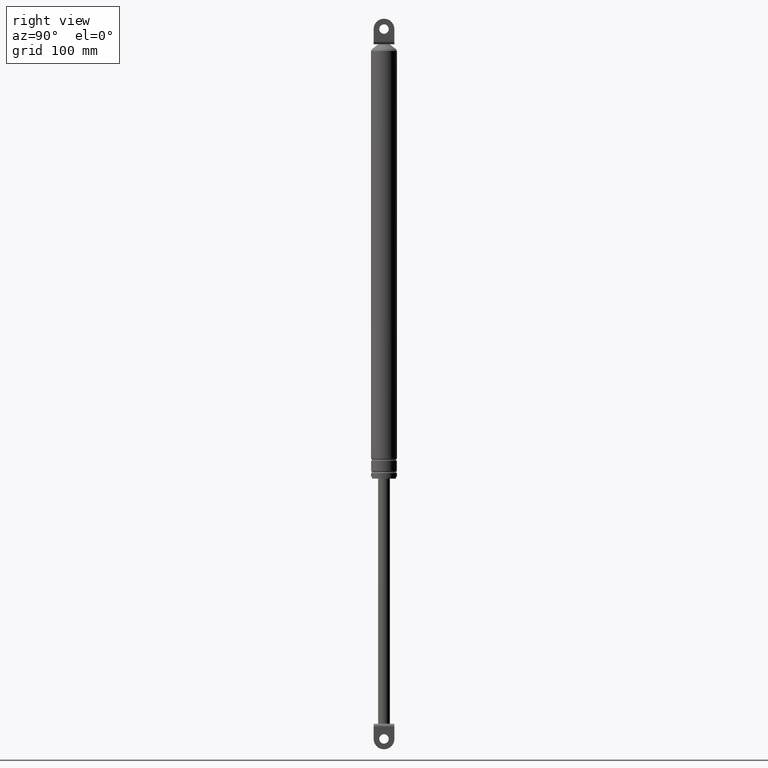
[diagram: clean part render]
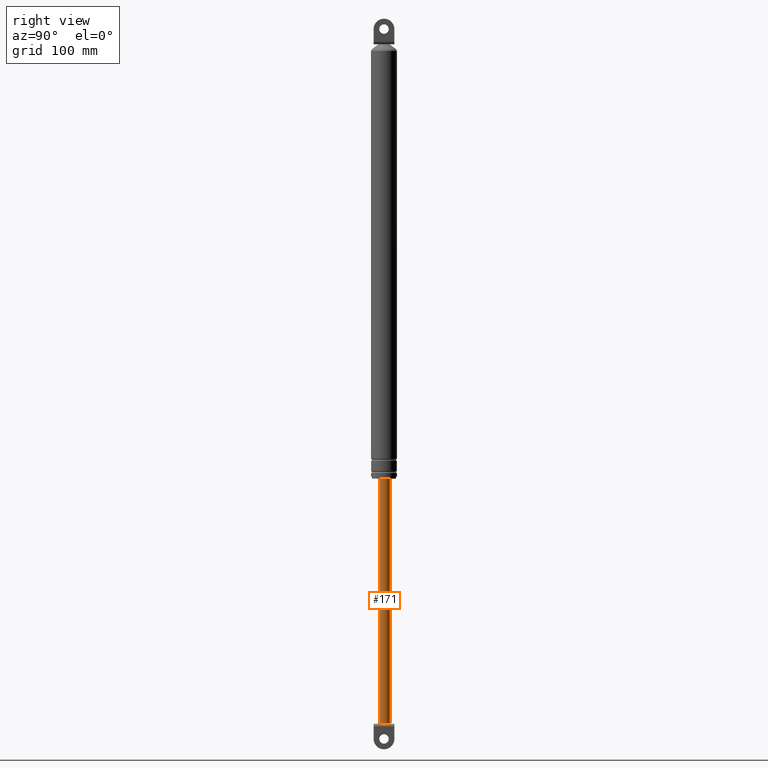
[diagram: same view with one face highlighted and labeled with its STEP entity id]
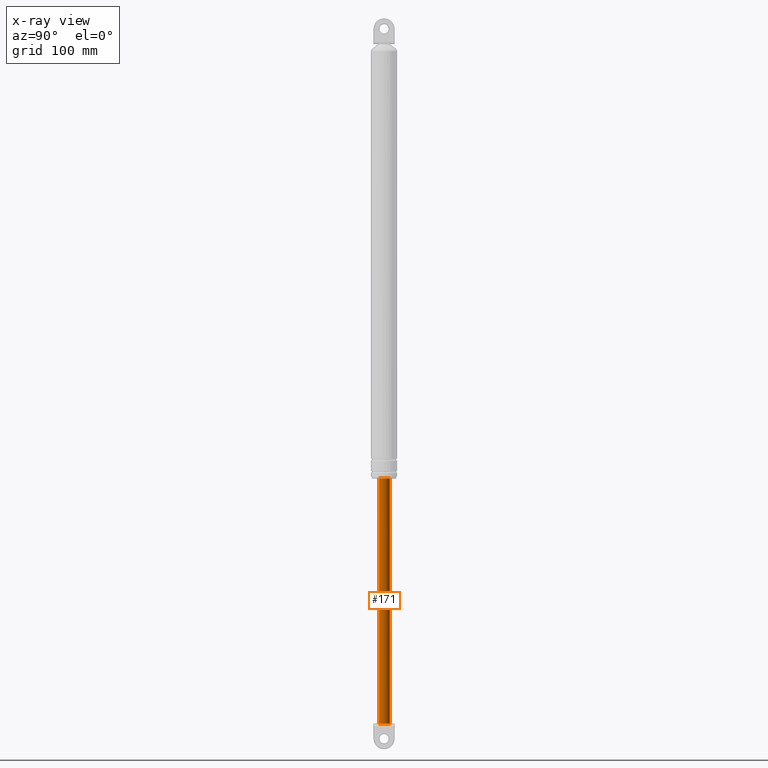
[diagram: x-ray of the same camera — body ghosted, the highlighted face saturated]
A machine part, right view. The second image highlights one B-rep face of the part: STEP entity #171.
The next image is the same camera in x-ray: the body ghosted, the highlighted face saturated — about 0% of this face is hidden behind the body in this view.
In plain terms, the highlighted cylindrical surface (edge-blend (fillet) strip) has radius 6.25 mm, axis along (0, 0, 1).
Its self-contained STEP definition (entity closure, byte-faithful):
#171=ADVANCED_FACE('',(#775),#774,.T.);
#774=CYLINDRICAL_SURFACE('',#2151,6.25000000000E+000);
#775=FACE_OUTER_BOUND('',#2152,.T.);
#2148=CARTESIAN_POINT('',(5.17052520630E-013,7.41881103725E-013,5.64750004000E+001));
#2149=DIRECTION('',(3.80518948291E-015,5.44705299484E-015,1.00000000000E+000));
#2150=DIRECTION('',(5.74319039491E-001,-8.18631566016E-001,2.27373675443E-015));
#2151=AXIS2_PLACEMENT_3D('',#2148,#2149,#2150);
#2152=EDGE_LOOP('',(#2529,#2530,#2531,#2532,#2533,#2534));
#2529=ORIENTED_EDGE('',*,*,#2718,.F.);
#2530=ORIENTED_EDGE('',*,*,#2740,.F.);
#2531=ORIENTED_EDGE('',*,*,#2722,.F.);
#2532=ORIENTED_EDGE('',*,*,#2716,.F.);
#2533=ORIENTED_EDGE('',*,*,#2721,.F.);
#2534=ORIENTED_EDGE('',*,*,#2741,.T.);
#2716=EDGE_CURVE('',#3819,#3806,#3845,.T.);
#2718=EDGE_CURVE('',#3852,#3859,#3860,.T.);
#2721=EDGE_CURVE('',#3872,#3819,#3879,.T.);
#2722=EDGE_CURVE('',#3806,#3885,#3886,.T.);
#2740=EDGE_CURVE('',#3885,#3852,#4006,.T.);
#2741=EDGE_CURVE('',#3872,#3859,#4012,.T.);
#3806=VERTEX_POINT('',#4707);
#3819=VERTEX_POINT('',#4715);
#3845=(BOUNDED_CURVE() B_SPLINE_CURVE(3,(#4741,#4742,#4743,#4744,#4745,#4746,#4747,#4748,#4749,#4750,#4751,#4752,#4753,#4754,#4755,#4756,#4757),.UNSPECIFIED.,.F.,.F.) B_SPLINE_CURVE_WITH_KNOTS((4,1,1,1,1,1,1,1,1,1,1,1,1,1,4),(0.00000000000E+000,1.01641516842E-001,1.77847721655E-001,2.54044348754E-001,2.92228724971E-001,3.49498602693E-001,4.10848167123E-001,4.92658784214E-001,5.77129426179E-001,6.40474828162E-001,6.99611975232E-001,7.39041330372E-001,8.17313273304E-001,8.95595721174E-001,1.00000000000E+000),.UNSPECIFIED.) CURVE() GEOMETRIC_REPRESENTATION_ITEM() RATIONAL_B_SPLINE_CURVE((1.00000000000E+000,1.00000000000E+000,1.00000000000E+000,1.00000000000E+000,1.00000000000E+000,1.00000000000E+000,1.00000000000E+000,1.00000000000E+000,1.00000000000E+000,1.00000000000E+000,1.00000000000E+000,1.00000000000E+000,1.00000000000E+000,1.00000000000E+000,1.00000000000E+000,1.00000000000E+000,1.00000000000E+000)) REPRESENTATION_ITEM('') );
#3852=VERTEX_POINT('',#4759);
#3859=VERTEX_POINT('',#4764);
#3860=CIRCLE('',#4768,6.25000000000E+000);
#3872=VERTEX_POINT('',#4773);
#3879=CIRCLE('',#4781,6.25000000000E+000);
#3885=VERTEX_POINT('',#4782);
#3886=CIRCLE('',#4786,6.25000000305E+000);
#4006=(BOUNDED_CURVE() B_SPLINE_CURVE(1,(#4886,#4887),.UNSPECIFIED.,.F.,.F.) B_SPLINE_CURVE_WITH_KNOTS((2,2),(3.58425167392E-002,9.64157716565E-001),.UNSPECIFIED.) CURVE() GEOMETRIC_REPRESENTATION_ITEM() RATIONAL_B_SPLINE_CURVE((1.00000000000E+000,1.00000000000E+000)) REPRESENTATION_ITEM('') );
#4012=(BOUNDED_CURVE() B_SPLINE_CURVE(1,(#4888,#4889),.UNSPECIFIED.,.F.,.F.) B_SPLINE_CURVE_WITH_KNOTS((2,2),(3.58425166952E-002,9.64157716507E-001),.UNSPECIFIED.) CURVE() GEOMETRIC_REPRESENTATION_ITEM() RATIONAL_B_SPLINE_CURVE((7.50000000000E-001,7.50000000000E-001)) REPRESENTATION_ITEM('') );
#4707=CARTESIAN_POINT('',(5.69999694525E+000,-2.56369554046E+000,-2.09000016000E+002));
#4715=CARTESIAN_POINT('',(5.69999705740E+000,2.56369541873E+000,-2.09000016000E+002));
#4741=CARTESIAN_POINT('',(5.69999705740E+000,2.56369541873E+000,-2.09000016000E+002));
#4742=CARTESIAN_POINT('',(5.77341445001E+000,2.40046650721E+000,-2.09000013720E+002));
#4743=CARTESIAN_POINT('',(5.88960533185E+000,2.10931027937E+000,-2.09000030250E+002));
#4744=CARTESIAN_POINT('',(6.02383267738E+000,1.68226258394E+000,-2.09000030657E+002));
#4745=CARTESIAN_POINT('',(6.10370319343E+000,1.35604793108E+000,-2.09000005889E+002));
#4746=CARTESIAN_POINT('',(6.16132003068E+000,1.05929759735E+000,-2.09000043077E+002));
#4747=CARTESIAN_POINT('',(6.20299004325E+000,7.86232315189E-001,-2.09000079730E+002));
#4748=CARTESIAN_POINT('',(6.23869609515E+000,4.34965106366E-001,-2.09000073328E+002));
#4749=CARTESIAN_POINT('',(6.25505614878E+000,3.41450152132E-002,-2.08999988265E+002));
#4750=CARTESIAN_POINT('',(6.24311865477E+000,-3.70376705801E-001,-2.09000059591E+002));
#4751=CARTESIAN_POINT('',(6.20963102534E+000,-7.33413097975E-001,-2.09000081063E+002));
#4752=CARTESIAN_POINT('',(6.16877179402E+000,-1.01570446172E+000,-2.09000049264E+002));
#4753=CARTESIAN_POINT('',(6.11136240023E+000,-1.32179777044E+000,-2.09000007357E+002));
#4754=CARTESIAN_POINT('',(6.03089619683E+000,-1.65766750171E+000,-2.09000027842E+002));
#4755=CARTESIAN_POINT('',(5.89441931723E+000,-2.09679538415E+000,-2.09000030510E+002));
#4756=CARTESIAN_POINT('',(5.77541031475E+000,-2.39602975653E+000,-2.09000013667E+002));
#4757=CARTESIAN_POINT('',(5.69999694525E+000,-2.56369554046E+000,-2.09000016000E+002));
#4759=CARTESIAN_POINT('',(3.58949399854E+000,-5.11644728639E+000,5.00000000000E+001));
#4764=CARTESIAN_POINT('',(-3.58946074567E+000,5.11647061511E+000,5.00000000000E+001));
#4765=CARTESIAN_POINT('',(1.33226762955E-015,8.88178419700E-016,5.00000000000E+001));
#4766=DIRECTION('',(-2.27373675443E-015,4.01943669423E-016,1.00000000000E+000));
#4767=DIRECTION('',(-1.00000000000E+000,-1.63424829225E-015,-2.27373675443E-015));
#4768=AXIS2_PLACEMENT_3D('',#4765,#4766,#4767);
#4773=CARTESIAN_POINT('',(-3.58942472581E+000,5.11649588466E+000,-2.09000016000E+002));
#4778=CARTESIAN_POINT('',(1.14885878588E-012,1.33359989718E-012,-2.09000016000E+002));
#4779=DIRECTION('',(4.86447595091E-014,1.74623383613E-014,-1.00000000000E+000));
#4780=DIRECTION('',(5.74319538181E-001,-8.18631216155E-001,1.36424205266E-014));
#4781=AXIS2_PLACEMENT_3D('',#4778,#4779,#4780);
#4782=CARTESIAN_POINT('',(3.58949399651E+000,-5.11644728718E+000,-2.09000016000E+002));
#4783=CARTESIAN_POINT('',(-2.01921102061E-009,2.93433277676E-009,-2.09000016000E+002));
#4784=DIRECTION('',(-2.31663044633E-014,1.50105157847E-014,-1.00000000000E+000));
#4785=DIRECTION('',(-9.11999519879E-001,4.10191267266E-001,2.72848410399E-014));
#4786=AXIS2_PLACEMENT_3D('',#4783,#4784,#4785);
#4886=CARTESIAN_POINT('',(3.58949399682E+000,-5.11644728760E+000,-2.09000015988E+002));
#4887=CARTESIAN_POINT('',(3.58949399682E+000,-5.11644728760E+000,5.00000000161E+001));
#4888=CARTESIAN_POINT('',(-3.58949399682E+000,5.11644728760E+000,-2.09000016000E+002));
#4889=CARTESIAN_POINT('',(-3.58949399682E+000,5.11644728760E+000,5.00000000000E+001));